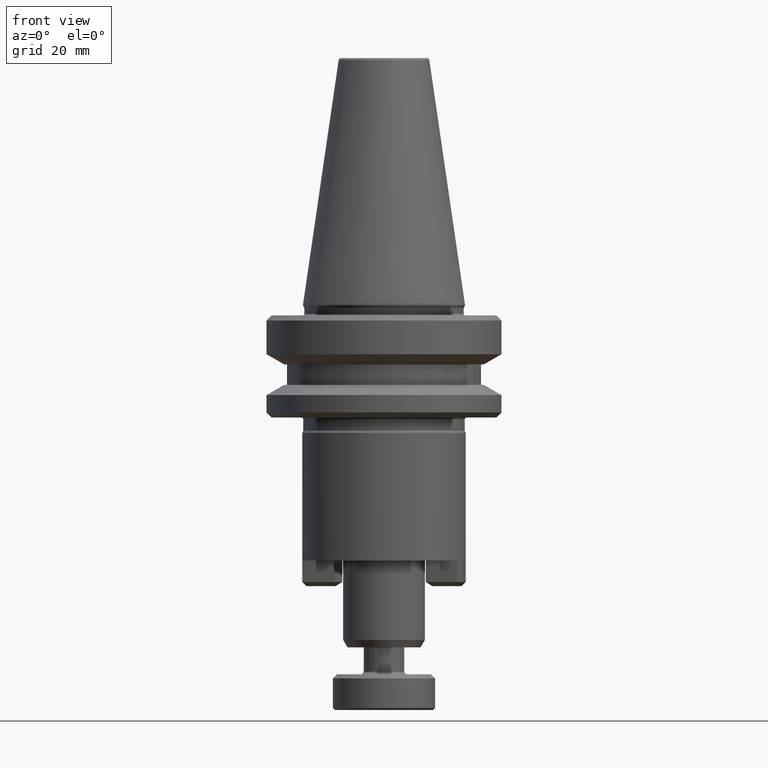
[diagram: clean part render]
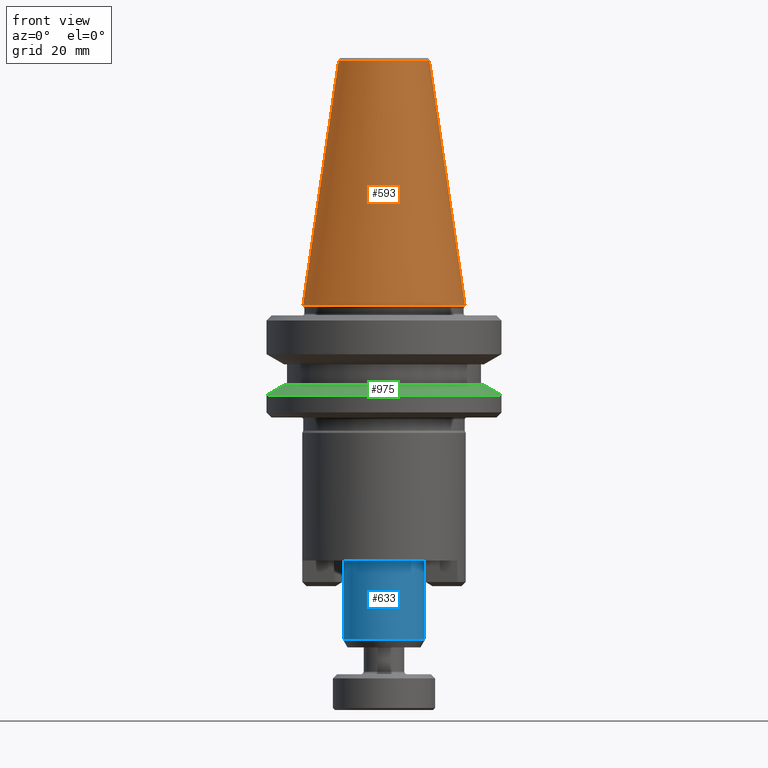
[diagram: same view with three faces highlighted in distinct colors, each labeled with its STEP entity id]
A machine part, front view with three faces highlighted in distinct colors.
Their STEP definitions:

[orange] entity #593 — the highlighted conical surface has half-angle 8.297 deg.
#15 = CIRCLE ( 'NONE', #340, 8.878994820583407900 ) ;
#90 = ORIENTED_EDGE ( 'NONE', *, *, #1540, .F. ) ;
#166 = DIRECTION ( 'NONE',  ( -0.1443082268835148600, 0.0000000000000000000, -0.9895327865481445800 ) ) ;
#181 = CARTESIAN_POINT ( 'NONE',  ( 10.50335856570572300, 1.568325594917043600, 11.06904471067091000 ) ) ;
#210 = CIRCLE ( 'NONE', #2049, 15.87500000000008300 ) ;
#219 = DIRECTION ( 'NONE',  ( -0.0000000000000000000, -0.0000000000000000000, 1.000000000000000000 ) ) ;
#232 = CARTESIAN_POINT ( 'NONE',  ( 10.50335856570572300, 1.568325594917041600, 11.06904471067091000 ) ) ;
#297 = ORIENTED_EDGE ( 'NONE', *, *, #1243, .T. ) ;
#340 = AXIS2_PLACEMENT_3D ( 'NONE', #1196, #219, #1364 ) ;
#349 = FACE_OUTER_BOUND ( 'NONE', #2070, .T. ) ;
#351 = DIRECTION ( 'NONE',  ( 0.1443082268835148600, 1.767266081435265100E-017, -0.9895327865481445800 ) ) ;
#396 = AXIS2_PLACEMENT_3D ( 'NONE', #1247, #1562, #596 ) ;
#416 = ORIENTED_EDGE ( 'NONE', *, *, #1901, .T. ) ;
#475 = VERTEX_POINT ( 'NONE', #882 ) ;
#593 = ADVANCED_FACE ( 'NONE', ( #349 ), #1531, .T. ) ;
#596 = DIRECTION ( 'NONE',  ( -1.000000000000000000, 0.0000000000000000000, 0.0000000000000000000 ) ) ;
#810 = ORIENTED_EDGE ( 'NONE', *, *, #1971, .F. ) ;
#823 = VECTOR ( 'NONE', #351, 1000.000000000000100 ) ;
#856 = DIRECTION ( 'NONE',  ( -0.0000000000000000000, -0.0000000000000000000, 1.000000000000000000 ) ) ;
#882 = CARTESIAN_POINT ( 'NONE',  ( 3.507353386289047100, 1.568325594917043200, 59.04119882411226400 ) ) ;
#1004 = VERTEX_POINT ( 'NONE', #232 ) ;
#1109 = VERTEX_POINT ( 'NONE', #1551 ) ;
#1196 = CARTESIAN_POINT ( 'NONE',  ( -5.371641434294360800, 1.568325594917041600, 59.04119882411226400 ) ) ;
#1243 = EDGE_CURVE ( 'NONE', #1976, #1004, #210, .T. ) ;
#1247 = CARTESIAN_POINT ( 'NONE',  ( -5.371641434294360800, 1.568325594917041600, 11.06904471067091000 ) ) ;
#1250 = LINE ( 'NONE', #181, #823 ) ;
#1328 = CARTESIAN_POINT ( 'NONE',  ( -21.24664143429444600, 1.568325594917043600, 11.06904471067091000 ) ) ;
#1364 = DIRECTION ( 'NONE',  ( 1.000000000000000000, 0.0000000000000000000, 0.0000000000000000000 ) ) ;
#1412 = LINE ( 'NONE', #1620, #1827 ) ;
#1531 = CONICAL_SURFACE ( 'NONE', #396, 15.87500000000008300, 0.1448138461595671600 ) ;
#1540 = EDGE_CURVE ( 'NONE', #1109, #475, #15, .T. ) ;
#1551 = CARTESIAN_POINT ( 'NONE',  ( -14.25063625487776900, 1.568325594917041600, 59.04119882411226400 ) ) ;
#1562 = DIRECTION ( 'NONE',  ( 0.0000000000000000000, 0.0000000000000000000, -1.000000000000000000 ) ) ;
#1620 = CARTESIAN_POINT ( 'NONE',  ( -21.24664143429444600, 1.568325594917041600, 11.06904471067091000 ) ) ;
#1827 = VECTOR ( 'NONE', #166, 1000.000000000000100 ) ;
#1828 = CARTESIAN_POINT ( 'NONE',  ( -5.371641434294360800, 1.568325594917041600, 11.06904471067091000 ) ) ;
#1901 = EDGE_CURVE ( 'NONE', #1109, #1976, #1412, .T. ) ;
#1971 = EDGE_CURVE ( 'NONE', #475, #1004, #1250, .T. ) ;
#1976 = VERTEX_POINT ( 'NONE', #1328 ) ;
#1985 = DIRECTION ( 'NONE',  ( 1.000000000000000000, 0.0000000000000000000, 0.0000000000000000000 ) ) ;
#2049 = AXIS2_PLACEMENT_3D ( 'NONE', #1828, #856, #1985 ) ;
#2070 = EDGE_LOOP ( 'NONE', ( #810, #90, #416, #297 ) ) ;

[blue] entity #633 — the highlighted cylindrical surface (partial cylindrical patch) has radius 8 mm, axis along (-0, -0, 1).
#13 = EDGE_CURVE ( 'NONE', #328, #1747, #481, .T. ) ;
#86 = VECTOR ( 'NONE', #1578, 1000.000000000000000 ) ;
#112 = LINE ( 'NONE', #564, #1816 ) ;
#119 = DIRECTION ( 'NONE',  ( -0.0000000000000000000, -0.0000000000000000000, 1.000000000000000000 ) ) ;
#140 = LINE ( 'NONE', #278, #86 ) ;
#278 = CARTESIAN_POINT ( 'NONE',  ( -13.37164143429436800, 1.568325594917042700, 75.33775355038541500 ) ) ;
#279 = CIRCLE ( 'NONE', #760, 8.000000000000007100 ) ;
#280 = CARTESIAN_POINT ( 'NONE',  ( -5.371641434294360800, 1.568325594917041600, 75.33775355038541500 ) ) ;
#286 = CARTESIAN_POINT ( 'NONE',  ( -5.371641434294360800, 1.568325594917041600, -54.45871210289601500 ) ) ;
#328 = VERTEX_POINT ( 'NONE', #1677 ) ;
#376 = EDGE_CURVE ( 'NONE', #1045, #1896, #279, .T. ) ;
#468 = CARTESIAN_POINT ( 'NONE',  ( 2.628358565705646300, 1.568325594917041600, -54.45871210289601500 ) ) ;
#481 = CIRCLE ( 'NONE', #668, 8.000000000000007100 ) ;
#555 = ORIENTED_EDGE ( 'NONE', *, *, #376, .T. ) ;
#564 = CARTESIAN_POINT ( 'NONE',  ( 2.628358565705646300, 1.568325594917041600, 75.33775355038541500 ) ) ;
#570 = CARTESIAN_POINT ( 'NONE',  ( 2.628358565705646300, 1.568325594917041600, -38.93095528733178400 ) ) ;
#632 = CYLINDRICAL_SURFACE ( 'NONE', #1042, 8.000000000000007100 ) ;
#633 = ADVANCED_FACE ( 'NONE', ( #1964 ), #632, .T. ) ;
#668 = AXIS2_PLACEMENT_3D ( 'NONE', #286, #1255, #754 ) ;
#682 = ORIENTED_EDGE ( 'NONE', *, *, #1698, .F. ) ;
#754 = DIRECTION ( 'NONE',  ( 1.000000000000000000, 0.0000000000000000000, 0.0000000000000000000 ) ) ;
#760 = AXIS2_PLACEMENT_3D ( 'NONE', #1810, #1799, #1000 ) ;
#829 = ORIENTED_EDGE ( 'NONE', *, *, #13, .T. ) ;
#926 = DIRECTION ( 'NONE',  ( 1.000000000000000000, 0.0000000000000000000, 0.0000000000000000000 ) ) ;
#992 = EDGE_LOOP ( 'NONE', ( #682, #829, #1718, #555 ) ) ;
#1000 = DIRECTION ( 'NONE',  ( -1.000000000000000000, 0.0000000000000000000, 0.0000000000000000000 ) ) ;
#1022 = EDGE_CURVE ( 'NONE', #1747, #1045, #112, .T. ) ;
#1042 = AXIS2_PLACEMENT_3D ( 'NONE', #280, #119, #926 ) ;
#1045 = VERTEX_POINT ( 'NONE', #570 ) ;
#1217 = DIRECTION ( 'NONE',  ( -0.0000000000000000000, -0.0000000000000000000, 1.000000000000000000 ) ) ;
#1255 = DIRECTION ( 'NONE',  ( -0.0000000000000000000, -0.0000000000000000000, 1.000000000000000000 ) ) ;
#1578 = DIRECTION ( 'NONE',  ( -0.0000000000000000000, -0.0000000000000000000, 1.000000000000000000 ) ) ;
#1677 = CARTESIAN_POINT ( 'NONE',  ( -13.37164143429436800, 1.568325594917042500, -54.45871210289601500 ) ) ;
#1698 = EDGE_CURVE ( 'NONE', #328, #1896, #140, .T. ) ;
#1718 = ORIENTED_EDGE ( 'NONE', *, *, #1022, .T. ) ;
#1747 = VERTEX_POINT ( 'NONE', #468 ) ;
#1799 = DIRECTION ( 'NONE',  ( 0.0000000000000000000, 0.0000000000000000000, -1.000000000000000000 ) ) ;
#1810 = CARTESIAN_POINT ( 'NONE',  ( -5.371641434294360800, 1.568325594917041600, -38.93095528733178400 ) ) ;
#1816 = VECTOR ( 'NONE', #1217, 1000.000000000000000 ) ;
#1896 = VERTEX_POINT ( 'NONE', #1941 ) ;
#1941 = CARTESIAN_POINT ( 'NONE',  ( -13.37164143429436800, 1.568325594917042700, -38.93095528733178400 ) ) ;
#1964 = FACE_OUTER_BOUND ( 'NONE', #992, .T. ) ;

[green] entity #975 — the highlighted conical surface has half-angle 60 deg.
#122 = CARTESIAN_POINT ( 'NONE',  ( -28.37164143429438200, 1.568325594917041600, -6.530837954274754300 ) ) ;
#187 = LINE ( 'NONE', #431, #625 ) ;
#198 = CARTESIAN_POINT ( 'NONE',  ( 14.16446018084338500, 1.568325594917044300, -4.530955289329035900 ) ) ;
#233 = ORIENTED_EDGE ( 'NONE', *, *, #1644, .F. ) ;
#241 = CARTESIAN_POINT ( 'NONE',  ( -5.371641434294360800, 1.568325594917041600, -4.530955289329035900 ) ) ;
#303 = DIRECTION ( 'NONE',  ( -0.0000000000000000000, -0.0000000000000000000, 1.000000000000000000 ) ) ;
#341 = EDGE_CURVE ( 'NONE', #1805, #1212, #1245, .T. ) ;
#393 = CARTESIAN_POINT ( 'NONE',  ( -5.371641434294360800, 1.568325594917041600, -6.530837954274754300 ) ) ;
#413 = DIRECTION ( 'NONE',  ( 1.000000000000000000, 0.0000000000000000000, 0.0000000000000000000 ) ) ;
#431 = CARTESIAN_POINT ( 'NONE',  ( 17.62835856570566100, 1.568325594917044500, -6.530837954274754300 ) ) ;
#444 = CARTESIAN_POINT ( 'NONE',  ( 17.62835856570566100, 1.568325594917041600, -6.530837954274754300 ) ) ;
#556 = AXIS2_PLACEMENT_3D ( 'NONE', #241, #1388, #413 ) ;
#622 = CARTESIAN_POINT ( 'NONE',  ( -24.90774304943210600, 1.568325594917041600, -4.530955289329035900 ) ) ;
#625 = VECTOR ( 'NONE', #1073, 1000.000000000000000 ) ;
#704 = EDGE_CURVE ( 'NONE', #1212, #1176, #1052, .T. ) ;
#719 = DIRECTION ( 'NONE',  ( -1.000000000000000000, 0.0000000000000000000, 0.0000000000000000000 ) ) ;
#822 = VECTOR ( 'NONE', #1094, 1000.000000000000000 ) ;
#938 = EDGE_LOOP ( 'NONE', ( #233, #1659, #959, #1682 ) ) ;
#959 = ORIENTED_EDGE ( 'NONE', *, *, #341, .T. ) ;
#975 = ADVANCED_FACE ( 'NONE', ( #1503 ), #983, .T. ) ;
#983 = CONICAL_SURFACE ( 'NONE', #1543, 23.00000000000002100, 1.047197551196603400 ) ;
#1052 = CIRCLE ( 'NONE', #1380, 23.00000000000002100 ) ;
#1073 = DIRECTION ( 'NONE',  ( 0.8660254037844414800, 1.060575238724910400E-016, -0.4999999999999951200 ) ) ;
#1094 = DIRECTION ( 'NONE',  ( -0.8660254037844414800, 0.0000000000000000000, -0.4999999999999951200 ) ) ;
#1176 = VERTEX_POINT ( 'NONE', #444 ) ;
#1212 = VERTEX_POINT ( 'NONE', #1956 ) ;
#1245 = LINE ( 'NONE', #122, #822 ) ;
#1282 = CARTESIAN_POINT ( 'NONE',  ( -5.371641434294360800, 1.568325594917041600, -6.530837954274754300 ) ) ;
#1380 = AXIS2_PLACEMENT_3D ( 'NONE', #1282, #303, #1445 ) ;
#1388 = DIRECTION ( 'NONE',  ( -0.0000000000000000000, -0.0000000000000000000, 1.000000000000000000 ) ) ;
#1445 = DIRECTION ( 'NONE',  ( 1.000000000000000000, 0.0000000000000000000, 0.0000000000000000000 ) ) ;
#1503 = FACE_OUTER_BOUND ( 'NONE', #938, .T. ) ;
#1543 = AXIS2_PLACEMENT_3D ( 'NONE', #393, #1684, #719 ) ;
#1575 = EDGE_CURVE ( 'NONE', #1805, #2056, #2008, .T. ) ;
#1644 = EDGE_CURVE ( 'NONE', #2056, #1176, #187, .T. ) ;
#1659 = ORIENTED_EDGE ( 'NONE', *, *, #1575, .F. ) ;
#1682 = ORIENTED_EDGE ( 'NONE', *, *, #704, .T. ) ;
#1684 = DIRECTION ( 'NONE',  ( 0.0000000000000000000, 0.0000000000000000000, -1.000000000000000000 ) ) ;
#1805 = VERTEX_POINT ( 'NONE', #622 ) ;
#1956 = CARTESIAN_POINT ( 'NONE',  ( -28.37164143429438200, 1.568325594917044500, -6.530837954274754300 ) ) ;
#2008 = CIRCLE ( 'NONE', #556, 19.53610161513774600 ) ;
#2056 = VERTEX_POINT ( 'NONE', #198 ) ;